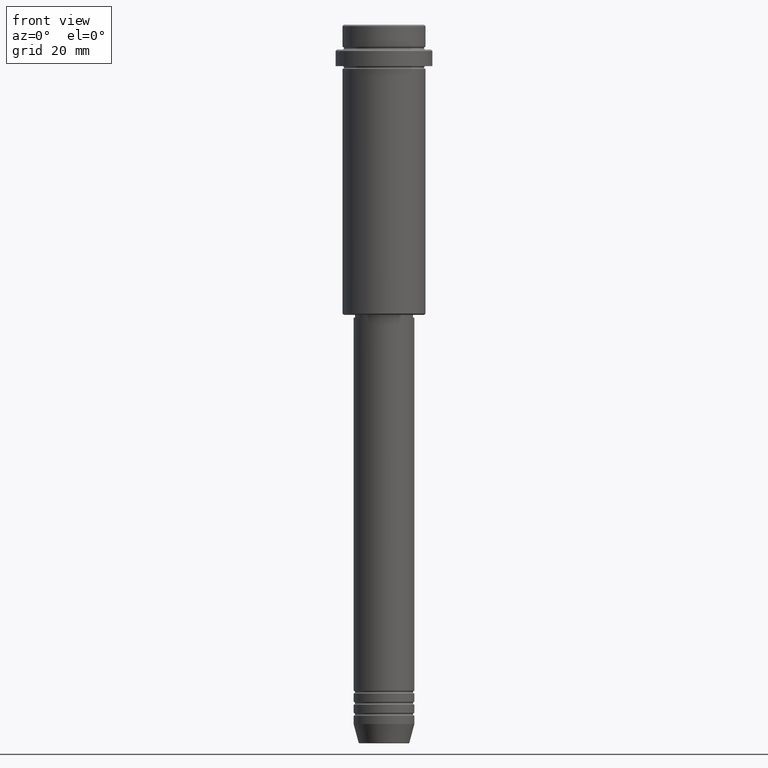
[diagram: clean part render]
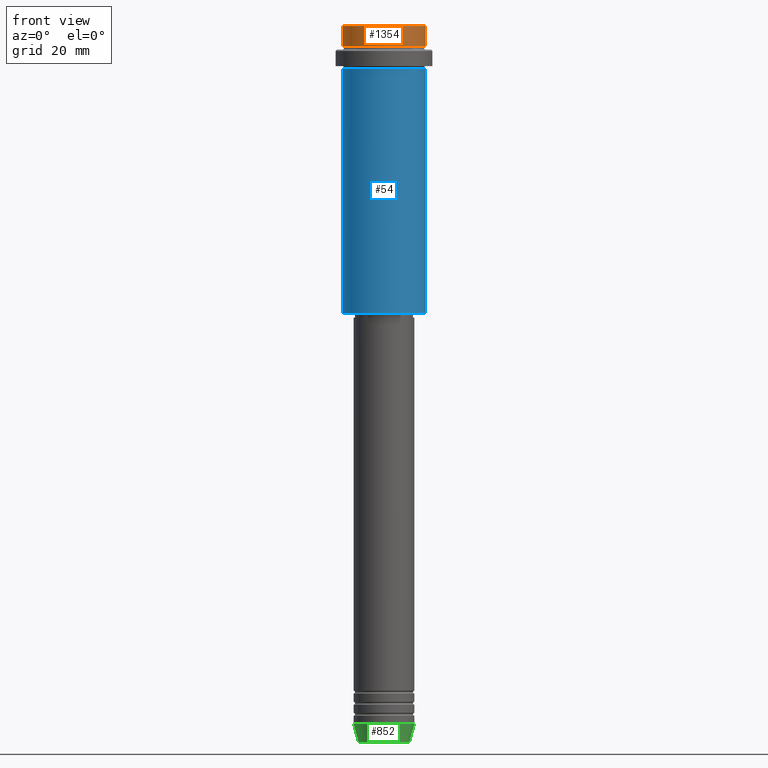
[diagram: same view with three faces highlighted in distinct colors, each labeled with its STEP entity id]
A machine part, front view with three faces highlighted in distinct colors.
Their STEP definitions:

[orange] entity #1354 — the highlighted cylindrical surface (partial cylindrical patch) has radius 15 mm, axis along (-0, -0, 1).
#17 = VERTEX_POINT ( 'NONE', #187 ) ;
#34 = LINE ( 'NONE', #1021, #312 ) ;
#46 = VERTEX_POINT ( 'NONE', #496 ) ;
#139 = DIRECTION ( 'NONE',  ( -0.000000000000000000, -0.000000000000000000, 1.000000000000000000 ) ) ;
#187 = CARTESIAN_POINT ( 'NONE',  ( 15.00000000000000000, 0.000000000000000000, -7.999999999999998224 ) ) ;
#212 = VERTEX_POINT ( 'NONE', #977 ) ;
#292 = FACE_OUTER_BOUND ( 'NONE', #427, .T. ) ;
#298 = DIRECTION ( 'NONE',  ( 1.000000000000000000, 0.000000000000000000, 0.000000000000000000 ) ) ;
#312 = VECTOR ( 'NONE', #810, 1000.000000000000000 ) ;
#321 = EDGE_CURVE ( 'NONE', #212, #686, #34, .T. ) ;
#374 = VECTOR ( 'NONE', #139, 1000.000000000000000 ) ;
#383 = DIRECTION ( 'NONE',  ( 1.000000000000000000, 0.000000000000000000, 0.000000000000000000 ) ) ;
#396 = ORIENTED_EDGE ( 'NONE', *, *, #321, .F. ) ;
#400 = AXIS2_PLACEMENT_3D ( 'NONE', #804, #1156, #383 ) ;
#427 = EDGE_LOOP ( 'NONE', ( #396, #948, #1094, #1233 ) ) ;
#496 = CARTESIAN_POINT ( 'NONE',  ( 15.00000000000000000, 0.000000000000000000, -0.5000000000000108802 ) ) ;
#549 = EDGE_CURVE ( 'NONE', #46, #686, #1195, .T. ) ;
#638 = CARTESIAN_POINT ( 'NONE',  ( 0.000000000000000000, 0.000000000000000000, -0.5000000000000108802 ) ) ;
#679 = LINE ( 'NONE', #789, #374 ) ;
#686 = VERTEX_POINT ( 'NONE', #1121 ) ;
#776 = EDGE_CURVE ( 'NONE', #17, #46, #679, .T. ) ;
#789 = CARTESIAN_POINT ( 'NONE',  ( 15.00000000000000000, 0.000000000000000000, 0.000000000000000000 ) ) ;
#804 = CARTESIAN_POINT ( 'NONE',  ( 0.000000000000000000, 0.000000000000000000, 0.000000000000000000 ) ) ;
#810 = DIRECTION ( 'NONE',  ( -0.000000000000000000, -0.000000000000000000, 1.000000000000000000 ) ) ;
#837 = CARTESIAN_POINT ( 'NONE',  ( 0.000000000000000000, 0.000000000000000000, -7.999999999999998224 ) ) ;
#943 = CIRCLE ( 'NONE', #1097, 15.00000000000000000 ) ;
#948 = ORIENTED_EDGE ( 'NONE', *, *, #968, .T. ) ;
#968 = EDGE_CURVE ( 'NONE', #212, #17, #943, .T. ) ;
#977 = CARTESIAN_POINT ( 'NONE',  ( -15.00000000000000000, 1.836970198721029589E-15, -7.999999999999998224 ) ) ;
#1021 = CARTESIAN_POINT ( 'NONE',  ( -15.00000000000000000, 1.836970198721029589E-15, 0.000000000000000000 ) ) ;
#1082 = DIRECTION ( 'NONE',  ( 0.000000000000000000, 0.000000000000000000, -1.000000000000000000 ) ) ;
#1094 = ORIENTED_EDGE ( 'NONE', *, *, #776, .T. ) ;
#1097 = AXIS2_PLACEMENT_3D ( 'NONE', #837, #1275, #298 ) ;
#1121 = CARTESIAN_POINT ( 'NONE',  ( -15.00000000000000000, 1.836970198721029589E-15, -0.5000000000000108802 ) ) ;
#1156 = DIRECTION ( 'NONE',  ( -0.000000000000000000, -0.000000000000000000, 1.000000000000000000 ) ) ;
#1186 = DIRECTION ( 'NONE',  ( 1.000000000000000000, 0.000000000000000000, 0.000000000000000000 ) ) ;
#1195 = CIRCLE ( 'NONE', #1385, 15.00000000000000000 ) ;
#1233 = ORIENTED_EDGE ( 'NONE', *, *, #549, .T. ) ;
#1243 = CYLINDRICAL_SURFACE ( 'NONE', #400, 15.00000000000000000 ) ;
#1275 = DIRECTION ( 'NONE',  ( -0.000000000000000000, -0.000000000000000000, 1.000000000000000000 ) ) ;
#1354 = ADVANCED_FACE ( 'NONE', ( #292 ), #1243, .T. ) ;
#1385 = AXIS2_PLACEMENT_3D ( 'NONE', #638, #1082, #1186 ) ;

[blue] entity #54 — the highlighted cylindrical surface (partial cylindrical patch) has radius 15 mm, axis along (-0, -0, 1).
#54 = ADVANCED_FACE ( 'NONE', ( #307 ), #942, .T. ) ;
#79 = ORIENTED_EDGE ( 'NONE', *, *, #825, .F. ) ;
#160 = EDGE_CURVE ( 'NONE', #221, #550, #661, .T. ) ;
#211 = CARTESIAN_POINT ( 'NONE',  ( -15.00000000000000355, 1.836970198721029983E-15, -16.00000000000000000 ) ) ;
#221 = VERTEX_POINT ( 'NONE', #1201 ) ;
#266 = CARTESIAN_POINT ( 'NONE',  ( 0.000000000000000000, 0.000000000000000000, -104.4999999999999716 ) ) ;
#307 = FACE_OUTER_BOUND ( 'NONE', #989, .T. ) ;
#337 = ORIENTED_EDGE ( 'NONE', *, *, #1209, .T. ) ;
#448 = CARTESIAN_POINT ( 'NONE',  ( 0.000000000000000000, 0.000000000000000000, -16.00000000000000000 ) ) ;
#519 = VERTEX_POINT ( 'NONE', #211 ) ;
#550 = VERTEX_POINT ( 'NONE', #1313 ) ;
#553 = DIRECTION ( 'NONE',  ( -0.000000000000000000, -0.000000000000000000, 1.000000000000000000 ) ) ;
#605 = CIRCLE ( 'NONE', #1410, 15.00000000000000000 ) ;
#652 = VECTOR ( 'NONE', #713, 1000.000000000000000 ) ;
#661 = LINE ( 'NONE', #1325, #894 ) ;
#669 = DIRECTION ( 'NONE',  ( 1.000000000000000000, 0.000000000000000000, 0.000000000000000000 ) ) ;
#699 = CIRCLE ( 'NONE', #1363, 15.00000000000000178 ) ;
#713 = DIRECTION ( 'NONE',  ( -0.000000000000000000, -0.000000000000000000, 1.000000000000000000 ) ) ;
#765 = AXIS2_PLACEMENT_3D ( 'NONE', #1394, #928, #1389 ) ;
#792 = ORIENTED_EDGE ( 'NONE', *, *, #1115, .F. ) ;
#825 = EDGE_CURVE ( 'NONE', #961, #519, #1328, .T. ) ;
#890 = DIRECTION ( 'NONE',  ( -0.000000000000000000, -0.000000000000000000, 1.000000000000000000 ) ) ;
#894 = VECTOR ( 'NONE', #553, 1000.000000000000000 ) ;
#928 = DIRECTION ( 'NONE',  ( -0.000000000000000000, -0.000000000000000000, 1.000000000000000000 ) ) ;
#942 = CYLINDRICAL_SURFACE ( 'NONE', #765, 15.00000000000000000 ) ;
#961 = VERTEX_POINT ( 'NONE', #1384 ) ;
#989 = EDGE_LOOP ( 'NONE', ( #79, #337, #1160, #792 ) ) ;
#1105 = DIRECTION ( 'NONE',  ( -1.000000000000000000, 0.000000000000000000, 0.000000000000000000 ) ) ;
#1115 = EDGE_CURVE ( 'NONE', #519, #550, #699, .T. ) ;
#1160 = ORIENTED_EDGE ( 'NONE', *, *, #160, .T. ) ;
#1201 = CARTESIAN_POINT ( 'NONE',  ( 15.00000000000000000, 0.000000000000000000, -104.4999999999999716 ) ) ;
#1209 = EDGE_CURVE ( 'NONE', #961, #221, #605, .T. ) ;
#1220 = DIRECTION ( 'NONE',  ( -0.000000000000000000, -0.000000000000000000, 1.000000000000000000 ) ) ;
#1257 = CARTESIAN_POINT ( 'NONE',  ( -15.00000000000000000, 1.836970198721029589E-15, 0.000000000000000000 ) ) ;
#1313 = CARTESIAN_POINT ( 'NONE',  ( 15.00000000000000178, 0.000000000000000000, -16.00000000000000000 ) ) ;
#1325 = CARTESIAN_POINT ( 'NONE',  ( 15.00000000000000000, 0.000000000000000000, 0.000000000000000000 ) ) ;
#1328 = LINE ( 'NONE', #1257, #652 ) ;
#1363 = AXIS2_PLACEMENT_3D ( 'NONE', #448, #890, #669 ) ;
#1384 = CARTESIAN_POINT ( 'NONE',  ( -15.00000000000000000, 1.836970198721029589E-15, -104.4999999999999716 ) ) ;
#1389 = DIRECTION ( 'NONE',  ( 1.000000000000000000, 0.000000000000000000, 0.000000000000000000 ) ) ;
#1394 = CARTESIAN_POINT ( 'NONE',  ( 0.000000000000000000, 0.000000000000000000, 0.000000000000000000 ) ) ;
#1410 = AXIS2_PLACEMENT_3D ( 'NONE', #266, #1220, #1105 ) ;

[green] entity #852 — the highlighted conical surface has half-angle 15 deg.
#32 = VERTEX_POINT ( 'NONE', #526 ) ;
#44 = CARTESIAN_POINT ( 'NONE',  ( 0.000000000000000000, 0.000000000000000000, -253.0000000000000000 ) ) ;
#61 = CARTESIAN_POINT ( 'NONE',  ( 9.223655072137189492, 0.000000000000000000, -259.6294095225512706 ) ) ;
#65 = EDGE_CURVE ( 'NONE', #32, #855, #1140, .T. ) ;
#69 = CARTESIAN_POINT ( 'NONE',  ( -11.00000000000000000, 1.347111479062088405E-15, -253.0000000000000000 ) ) ;
#75 = FACE_OUTER_BOUND ( 'NONE', #282, .T. ) ;
#84 = CONICAL_SURFACE ( 'NONE', #228, 11.00000000000000000, 0.2617993877991500740 ) ;
#110 = AXIS2_PLACEMENT_3D ( 'NONE', #44, #1234, #364 ) ;
#162 = CARTESIAN_POINT ( 'NONE',  ( 0.000000000000000000, 0.000000000000000000, -253.0000000000000000 ) ) ;
#197 = VECTOR ( 'NONE', #950, 1000.000000000000000 ) ;
#204 = CARTESIAN_POINT ( 'NONE',  ( 11.00000000000000000, 0.000000000000000000, -253.0000000000000000 ) ) ;
#222 = AXIS2_PLACEMENT_3D ( 'NONE', #839, #845, #1260 ) ;
#228 = AXIS2_PLACEMENT_3D ( 'NONE', #162, #946, #286 ) ;
#282 = EDGE_LOOP ( 'NONE', ( #973, #306, #453, #712 ) ) ;
#286 = DIRECTION ( 'NONE',  ( 1.000000000000000000, 0.000000000000000000, 0.000000000000000000 ) ) ;
#306 = ORIENTED_EDGE ( 'NONE', *, *, #65, .T. ) ;
#364 = DIRECTION ( 'NONE',  ( 1.000000000000000000, 0.000000000000000000, 0.000000000000000000 ) ) ;
#401 = EDGE_CURVE ( 'NONE', #32, #558, #927, .T. ) ;
#453 = ORIENTED_EDGE ( 'NONE', *, *, #459, .T. ) ;
#459 = EDGE_CURVE ( 'NONE', #855, #1223, #934, .T. ) ;
#526 = CARTESIAN_POINT ( 'NONE',  ( -9.223655072137189492, 1.238341722557647202E-15, -259.6294095225512706 ) ) ;
#558 = VERTEX_POINT ( 'NONE', #1406 ) ;
#631 = DIRECTION ( 'NONE',  ( 0.2588190451025213501, 0.000000000000000000, 0.9659258262890680902 ) ) ;
#712 = ORIENTED_EDGE ( 'NONE', *, *, #1132, .F. ) ;
#839 = CARTESIAN_POINT ( 'NONE',  ( 0.000000000000000000, 0.000000000000000000, -259.6294095225512706 ) ) ;
#845 = DIRECTION ( 'NONE',  ( -0.000000000000000000, -0.000000000000000000, 1.000000000000000000 ) ) ;
#852 = ADVANCED_FACE ( 'NONE', ( #75 ), #84, .T. ) ;
#855 = VERTEX_POINT ( 'NONE', #61 ) ;
#882 = CIRCLE ( 'NONE', #110, 11.00000000000000000 ) ;
#927 = LINE ( 'NONE', #69, #197 ) ;
#934 = LINE ( 'NONE', #204, #1340 ) ;
#946 = DIRECTION ( 'NONE',  ( -0.000000000000000000, -0.000000000000000000, 1.000000000000000000 ) ) ;
#950 = DIRECTION ( 'NONE',  ( -0.2588190451025213501, 3.169619151431772337E-17, 0.9659258262890680902 ) ) ;
#973 = ORIENTED_EDGE ( 'NONE', *, *, #401, .F. ) ;
#1119 = CARTESIAN_POINT ( 'NONE',  ( 11.00000000000000000, 0.000000000000000000, -253.0000000000000000 ) ) ;
#1132 = EDGE_CURVE ( 'NONE', #558, #1223, #882, .T. ) ;
#1140 = CIRCLE ( 'NONE', #222, 9.223655072137189492 ) ;
#1223 = VERTEX_POINT ( 'NONE', #1119 ) ;
#1234 = DIRECTION ( 'NONE',  ( -0.000000000000000000, -0.000000000000000000, 1.000000000000000000 ) ) ;
#1260 = DIRECTION ( 'NONE',  ( 1.000000000000000000, 0.000000000000000000, 0.000000000000000000 ) ) ;
#1340 = VECTOR ( 'NONE', #631, 1000.000000000000000 ) ;
#1406 = CARTESIAN_POINT ( 'NONE',  ( -11.00000000000000000, 1.347111479062088405E-15, -253.0000000000000000 ) ) ;